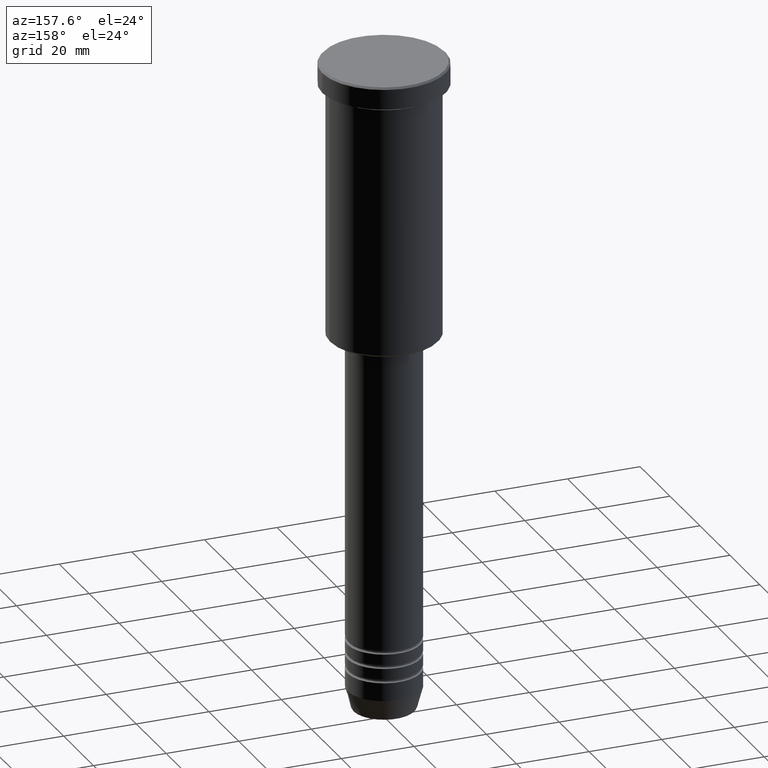
[diagram: clean part render]
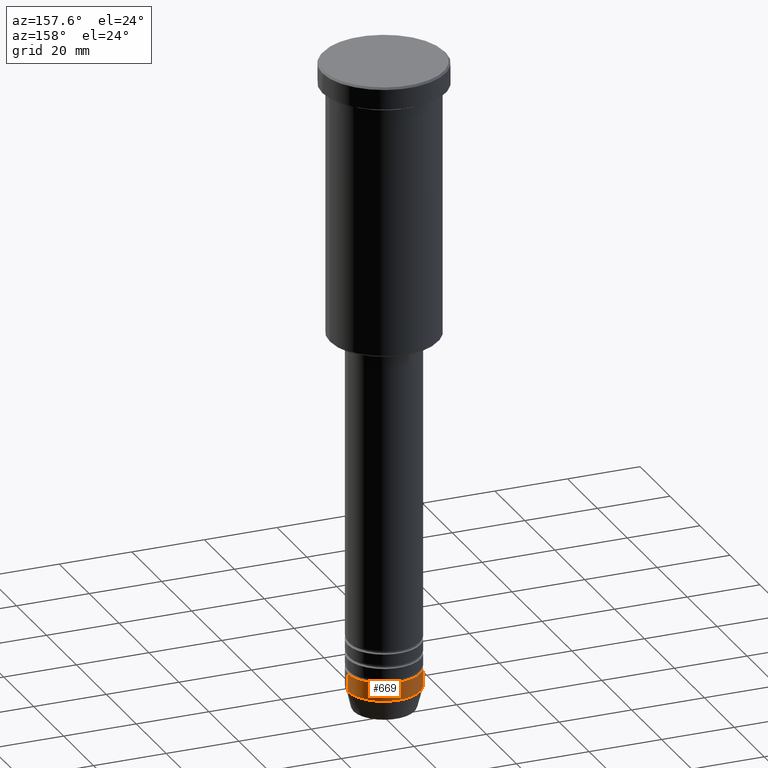
[diagram: same view with one face highlighted and labeled with its STEP entity id]
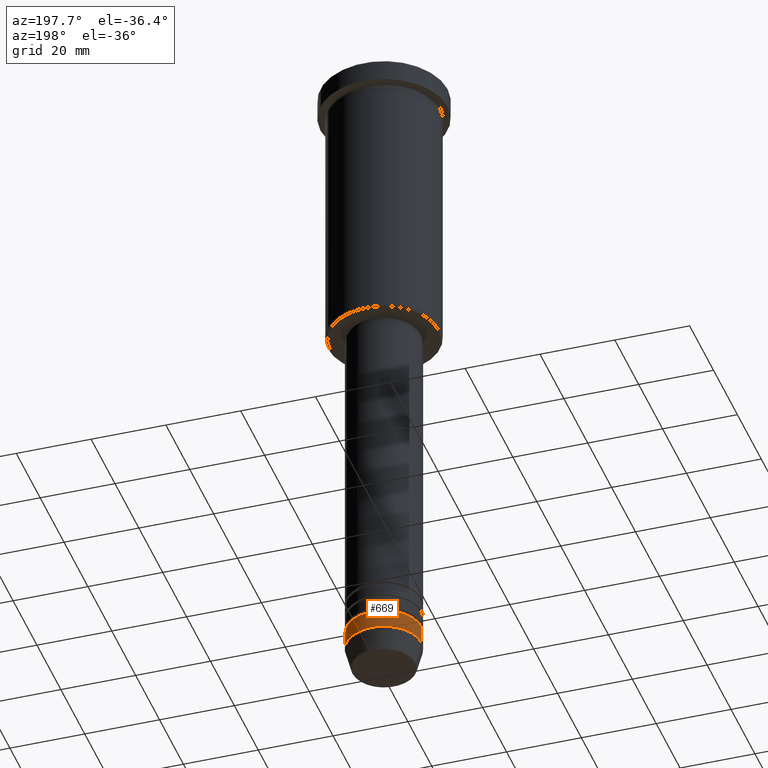
[diagram: same view with one face highlighted and labeled with its STEP entity id]
A machine part, auxiliary view. The second image highlights one B-rep face of the part: STEP entity #669.
A second angle (auxiliary view) of the same face is appended — the face is thin or edge-on in the first view.
In plain terms, the highlighted cylindrical surface (partial cylindrical patch) has radius 10 mm, axis along (-0, -0, 1).
Its self-contained STEP definition (entity closure, byte-faithful):
#31 = EDGE_CURVE ( 'NONE', #1061, #397, #145, .T. ) ;
#47 = VECTOR ( 'NONE', #897, 1000.000000000000000 ) ;
#83 = CARTESIAN_POINT ( 'NONE',  ( 0.000000000000000000, 0.000000000000000000, 0.000000000000000000 ) ) ;
#112 = ORIENTED_EDGE ( 'NONE', *, *, #31, .T. ) ;
#116 = DIRECTION ( 'NONE',  ( 1.000000000000000000, 0.000000000000000000, 0.000000000000000000 ) ) ;
#130 = VERTEX_POINT ( 'NONE', #326 ) ;
#145 = CIRCLE ( 'NONE', #686, 10.00000000000000178 ) ;
#204 = AXIS2_PLACEMENT_3D ( 'NONE', #632, #1011, #116 ) ;
#228 = EDGE_LOOP ( 'NONE', ( #112, #624, #741, #697 ) ) ;
#251 = CARTESIAN_POINT ( 'NONE',  ( 10.00000000000000178, 0.000000000000000000, -174.0000000000000284 ) ) ;
#326 = CARTESIAN_POINT ( 'NONE',  ( 10.00000000000000000, 0.000000000000000000, -169.0000000000000000 ) ) ;
#346 = CARTESIAN_POINT ( 'NONE',  ( -10.00000000000000178, 1.224646799147353454E-15, 0.000000000000000000 ) ) ;
#353 = EDGE_CURVE ( 'NONE', #130, #1029, #534, .T. ) ;
#397 = VERTEX_POINT ( 'NONE', #944 ) ;
#457 = CARTESIAN_POINT ( 'NONE',  ( 0.000000000000000000, 0.000000000000000000, -174.0000000000000284 ) ) ;
#534 = CIRCLE ( 'NONE', #204, 10.00000000000000000 ) ;
#624 = ORIENTED_EDGE ( 'NONE', *, *, #1178, .T. ) ;
#632 = CARTESIAN_POINT ( 'NONE',  ( 0.000000000000000000, 0.000000000000000000, -169.0000000000000000 ) ) ;
#637 = DIRECTION ( 'NONE',  ( 1.000000000000000000, 0.000000000000000000, 0.000000000000000000 ) ) ;
#669 = ADVANCED_FACE ( 'NONE', ( #731 ), #1175, .T. ) ;
#682 = AXIS2_PLACEMENT_3D ( 'NONE', #83, #1086, #1081 ) ;
#686 = AXIS2_PLACEMENT_3D ( 'NONE', #457, #1104, #637 ) ;
#697 = ORIENTED_EDGE ( 'NONE', *, *, #1161, .F. ) ;
#717 = DIRECTION ( 'NONE',  ( -0.000000000000000000, -0.000000000000000000, 1.000000000000000000 ) ) ;
#731 = FACE_OUTER_BOUND ( 'NONE', #228, .T. ) ;
#741 = ORIENTED_EDGE ( 'NONE', *, *, #353, .F. ) ;
#897 = DIRECTION ( 'NONE',  ( -0.000000000000000000, -0.000000000000000000, 1.000000000000000000 ) ) ;
#944 = CARTESIAN_POINT ( 'NONE',  ( -10.00000000000000178, 1.224646799147353454E-15, -174.0000000000000284 ) ) ;
#960 = CARTESIAN_POINT ( 'NONE',  ( -10.00000000000000000, 1.224646799147353256E-15, -169.0000000000000000 ) ) ;
#990 = CARTESIAN_POINT ( 'NONE',  ( 10.00000000000000178, 0.000000000000000000, 0.000000000000000000 ) ) ;
#1011 = DIRECTION ( 'NONE',  ( -0.000000000000000000, -0.000000000000000000, 1.000000000000000000 ) ) ;
#1029 = VERTEX_POINT ( 'NONE', #960 ) ;
#1061 = VERTEX_POINT ( 'NONE', #251 ) ;
#1081 = DIRECTION ( 'NONE',  ( 1.000000000000000000, 0.000000000000000000, 0.000000000000000000 ) ) ;
#1085 = LINE ( 'NONE', #990, #47 ) ;
#1086 = DIRECTION ( 'NONE',  ( -0.000000000000000000, -0.000000000000000000, 1.000000000000000000 ) ) ;
#1098 = VECTOR ( 'NONE', #717, 1000.000000000000000 ) ;
#1104 = DIRECTION ( 'NONE',  ( -0.000000000000000000, -0.000000000000000000, 1.000000000000000000 ) ) ;
#1161 = EDGE_CURVE ( 'NONE', #1061, #130, #1085, .T. ) ;
#1167 = LINE ( 'NONE', #346, #1098 ) ;
#1175 = CYLINDRICAL_SURFACE ( 'NONE', #682, 10.00000000000000178 ) ;
#1178 = EDGE_CURVE ( 'NONE', #397, #1029, #1167, .T. ) ;